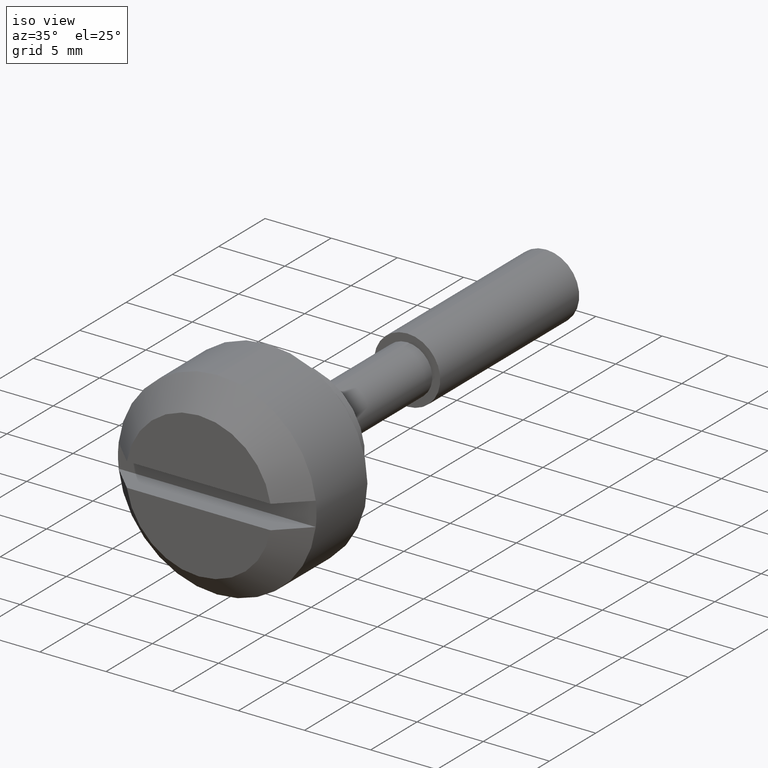
[diagram: clean part render]
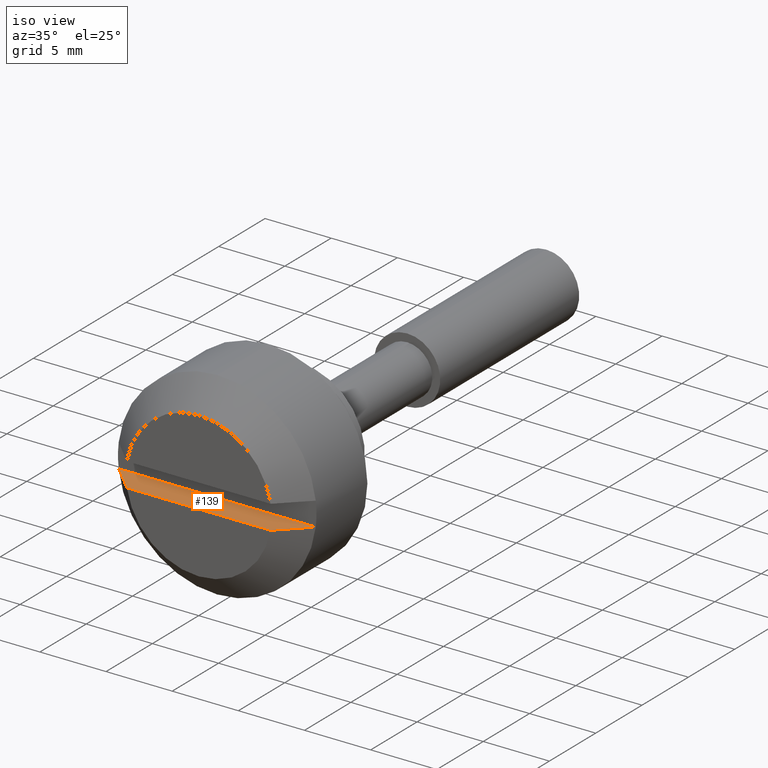
[diagram: same view with one face highlighted and labeled with its STEP entity id]
A machine part, iso view. The second image highlights one B-rep face of the part: STEP entity #139.
In plain terms, the highlighted planar face has unit normal (0, 0, 1).
Its self-contained STEP definition (entity closure, byte-faithful):
#139=ADVANCED_FACE('',(#430),#429,.T.);
#429=PLANE('',#722);
#430=FACE_OUTER_BOUND('',#723,.T.);
#719=CARTESIAN_POINT('',(-1.01999000000E+01,-8.93496502511E+00,-9.00000000000E-01));
#720=DIRECTION('',(0.00000000000E+00,0.00000000000E+00,1.00000000000E+00));
#721=DIRECTION('',(1.00000000000E+00,0.00000000000E+00,0.00000000000E+00));
#722=AXIS2_PLACEMENT_3D('',#719,#720,#721);
#723=EDGE_LOOP('',(#962,#963,#964,#965));
#962=ORIENTED_EDGE('',*,*,#1102,.F.);
#963=ORIENTED_EDGE('',*,*,#1100,.F.);
#964=ORIENTED_EDGE('',*,*,#1103,.F.);
#965=ORIENTED_EDGE('',*,*,#1080,.T.);
#1080=EDGE_CURVE('',#1484,#1485,#1486,.T.);
#1100=EDGE_CURVE('',#1616,#1623,#1624,.T.);
#1102=EDGE_CURVE('',#1623,#1485,#1636,.T.);
#1103=EDGE_CURVE('',#1484,#1616,#1642,.T.);
#1484=VERTEX_POINT('',#1991);
#1485=VERTEX_POINT('',#1992);
#1486=LINE('',#1993,#1994);
#1616=VERTEX_POINT('',#2082);
#1623=VERTEX_POINT('',#2087);
#1624=LINE('',#2088,#2089);
#1636=(BOUNDED_CURVE() B_SPLINE_CURVE(3,(#2095,#2096,#2097,#2098),.UNSPECIFIED.,.F.,.F.) B_SPLINE_CURVE_WITH_KNOTS((4,4),(1.27287149362E-02,1.55712763781E-02),.UNSPECIFIED.) CURVE() GEOMETRIC_REPRESENTATION_ITEM() RATIONAL_B_SPLINE_CURVE((1.00000000000E+00,1.00000000000E+00,1.00000000000E+00,1.00000000000E+00)) REPRESENTATION_ITEM('') );
#1642=(BOUNDED_CURVE() B_SPLINE_CURVE(3,(#2099,#2100,#2101,#2102),.UNSPECIFIED.,.F.,.F.) B_SPLINE_CURVE_WITH_KNOTS((4,4),(2.99411617818E-02,3.27847412295E-02),.UNSPECIFIED.) CURVE() GEOMETRIC_REPRESENTATION_ITEM() RATIONAL_B_SPLINE_CURVE((1.00000000000E+00,1.00000000000E+00,1.00000000000E+00,1.00000000000E+00)) REPRESENTATION_ITEM('') );
#1991=CARTESIAN_POINT('',(-9.99990000000E+00,5.42586398650E+00,-9.00000000000E-01));
#1992=CARTESIAN_POINT('',(-9.99990000000E+00,-5.42586398650E+00,-9.00000000000E-01));
#1993=CARTESIAN_POINT('',(-9.99990000000E+00,5.42586398650E+00,-9.00000000000E-01));
#1994=VECTOR('',#1995,1.08517279730E+01);
#1995=DIRECTION('',(0.00000000000E+00,-1.00000000000E+00,0.00000000000E+00));
#2082=CARTESIAN_POINT('',(-7.99990000000E+00,7.44580418759E+00,-9.00000000000E-01));
#2087=CARTESIAN_POINT('',(-7.99990000000E+00,-7.44580418759E+00,-9.00000000000E-01));
#2088=CARTESIAN_POINT('',(-7.99990000000E+00,7.44580418759E+00,-9.00000000000E-01));
#2089=VECTOR('',#2090,1.48916083752E+01);
#2090=DIRECTION('',(0.00000000000E+00,-1.00000000000E+00,0.00000000000E+00));
#2095=CARTESIAN_POINT('',(-7.99990000000E+00,-7.44580418759E+00,-9.00000000000E-01));
#2096=CARTESIAN_POINT('',(-8.66746443278E+00,-6.77338075022E+00,-9.00000000000E-01));
#2097=CARTESIAN_POINT('',(-9.33446139654E+00,-6.10039477610E+00,-9.00000000000E-01));
#2098=CARTESIAN_POINT('',(-9.99990000000E+00,-5.42586398650E+00,-9.00000000000E-01));
#2099=CARTESIAN_POINT('',(-9.99990000000E+00,5.42586398650E+00,-9.00000000000E-01));
#2100=CARTESIAN_POINT('',(-9.33446199411E+00,6.10039417036E+00,-9.00000000000E-01));
#2101=CARTESIAN_POINT('',(-8.66746487103E+00,6.77338030878E+00,-9.00000000000E-01));
#2102=CARTESIAN_POINT('',(-7.99990000000E+00,7.44580418759E+00,-9.00000000000E-01));